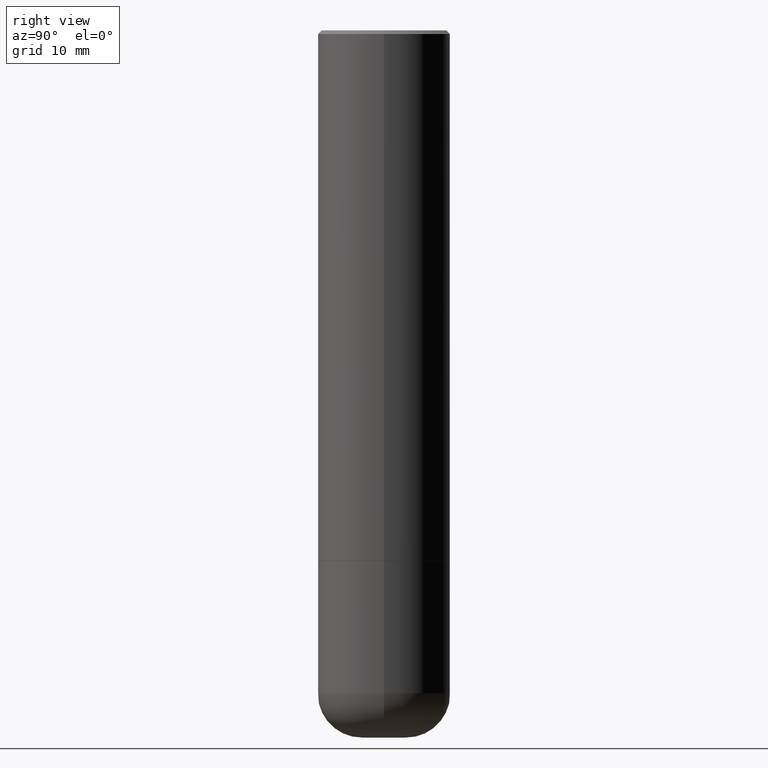
[diagram: clean part render]
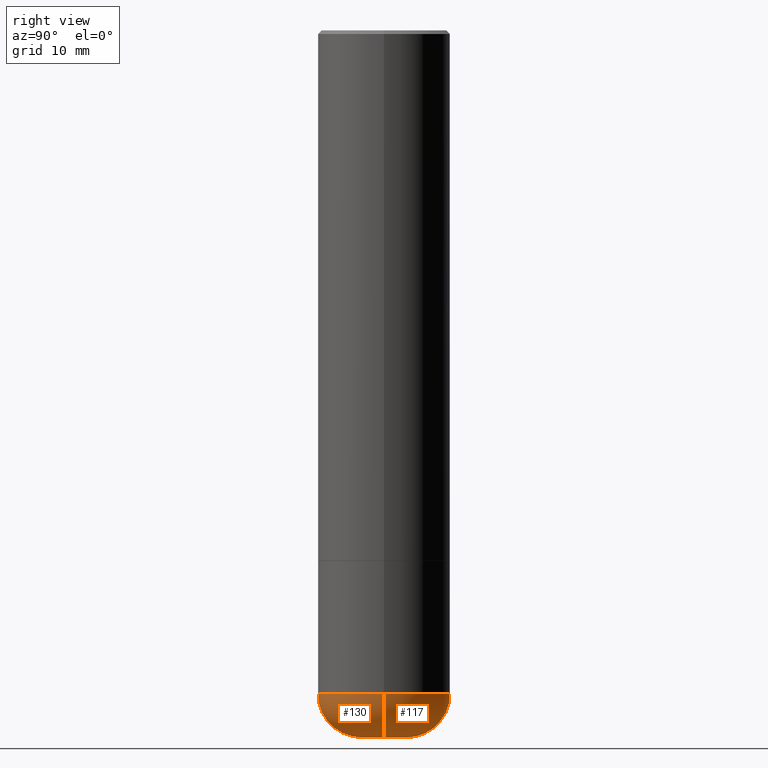
[diagram: same view with one multi-face feature highlighted, each face labeled with its STEP entity id]
A machine part, right view. The highlighted faces form ONE feature: a constant-radius fillet chain: 2 tangent blend faces with common blend radius 6.35 mm. The faces share edges in the B-rep.
Their STEP definitions:
[1] entity #117 (Torus):
#16 = ORIENTED_EDGE ( 'NONE', *, *, #95, .T. ) ;
#60 = VERTEX_POINT ( 'NONE', #324 ) ;
#95 = EDGE_CURVE ( 'NONE', #444, #265, #425, .T. ) ;
#100 = DIRECTION ( 'NONE',  ( 1.000000000000000000, -6.982962677686264344E-15, 0.000000000000000000 ) ) ;
#117 = ADVANCED_FACE ( 'NONE', ( #287 ), #470, .T. ) ;
#120 = VERTEX_POINT ( 'NONE', #131 ) ;
#131 = CARTESIAN_POINT ( 'NONE',  ( 0.3750000000000000555, -1.571169926102186855E-14, -3.750009519233957089 ) ) ;
#133 = CARTESIAN_POINT ( 'NONE',  ( -0.1228183661254081405, -1.176090068723919562E-14, -4.000000000000000000 ) ) ;
#147 = AXIS2_PLACEMENT_3D ( 'NONE', #480, #171, #100 ) ;
#171 = DIRECTION ( 'NONE',  ( -2.445468806185136597E-29, 3.491481338843145583E-15, 1.000000000000000000 ) ) ;
#193 = CIRCLE ( 'NONE', #395, 0.2499999999999998612 ) ;
#202 = ORIENTED_EDGE ( 'NONE', *, *, #355, .F. ) ;
#205 = DIRECTION ( 'NONE',  ( -2.445468806185136597E-29, 3.491481338843145583E-15, 1.000000000000000000 ) ) ;
#206 = AXIS2_PLACEMENT_3D ( 'NONE', #216, #209, #405 ) ;
#209 = DIRECTION ( 'NONE',  ( 7.105427357601001859E-15, 1.000000000000000000, -3.491481338843145583E-15 ) ) ;
#216 = CARTESIAN_POINT ( 'NONE',  ( -0.1250000000000002498, -1.220490983718939015E-14, -3.750009519233957089 ) ) ;
#225 = AXIS2_PLACEMENT_3D ( 'NONE', #333, #205, #448 ) ;
#228 = CARTESIAN_POINT ( 'NONE',  ( 0.1250000000000002498, -1.396595859160030187E-14, -3.750009519233957089 ) ) ;
#244 = DIRECTION ( 'NONE',  ( 1.000000000000000000, -6.982962677686266711E-15, 0.000000000000000000 ) ) ;
#246 = ORIENTED_EDGE ( 'NONE', *, *, #397, .F. ) ;
#259 = CARTESIAN_POINT ( 'NONE',  ( 9.170531302183963183E-29, -1.309308825688951696E-14, -3.750009519233957089 ) ) ;
#264 = DIRECTION ( 'NONE',  ( -2.445468806185136597E-29, 3.491481338843145583E-15, 1.000000000000000000 ) ) ;
#265 = VERTEX_POINT ( 'NONE', #384 ) ;
#268 = ORIENTED_EDGE ( 'NONE', *, *, #479, .T. ) ;
#269 = CIRCLE ( 'NONE', #147, 0.1228183661254081405 ) ;
#287 = FACE_OUTER_BOUND ( 'NONE', #288, .T. ) ;
#288 = EDGE_LOOP ( 'NONE', ( #268, #16, #246, #202 ) ) ;
#289 = DIRECTION ( 'NONE',  ( 1.000000000000000000, -6.982962677686265922E-15, 4.883557194083113462E-29 ) ) ;
#320 = AXIS2_PLACEMENT_3D ( 'NONE', #259, #264, #289 ) ;
#324 = CARTESIAN_POINT ( 'NONE',  ( 0.1228183661254081405, -1.482356142216071483E-14, -4.000000000000000000 ) ) ;
#333 = CARTESIAN_POINT ( 'NONE',  ( 9.170531302183963183E-29, -1.309308825688951696E-14, -3.750009519233957089 ) ) ;
#355 = EDGE_CURVE ( 'NONE', #60, #120, #193, .T. ) ;
#384 = CARTESIAN_POINT ( 'NONE',  ( -0.3750000000000000555, -9.119230877609100958E-15, -3.750009519233957089 ) ) ;
#395 = AXIS2_PLACEMENT_3D ( 'NONE', #228, #427, #244 ) ;
#397 = EDGE_CURVE ( 'NONE', #120, #265, #483, .T. ) ;
#405 = DIRECTION ( 'NONE',  ( -1.000000000000000000, 7.105427357601000281E-15, 0.000000000000000000 ) ) ;
#425 = CIRCLE ( 'NONE', #206, 0.2499999999999998612 ) ;
#427 = DIRECTION ( 'NONE',  ( -6.982962677686266711E-15, -1.000000000000000000, 3.491481338843145583E-15 ) ) ;
#444 = VERTEX_POINT ( 'NONE', #133 ) ;
#448 = DIRECTION ( 'NONE',  ( 1.000000000000000000, -6.982962677686266711E-15, 0.000000000000000000 ) ) ;
#470 = TOROIDAL_SURFACE ( 'NONE', #320, 0.1250000000000002498, 0.2499999999999998890 ) ;
#479 = EDGE_CURVE ( 'NONE', #60, #444, #269, .T. ) ;
#480 = CARTESIAN_POINT ( 'NONE',  ( 9.781875224740546387E-29, -1.396592535537258233E-14, -4.000000000000000000 ) ) ;
#483 = CIRCLE ( 'NONE', #225, 0.3750000000000000555 ) ;
[2] entity #130 (Torus):
#43 = DIRECTION ( 'NONE',  ( 1.000000000000000000, -6.982962677686264344E-15, 0.000000000000000000 ) ) ;
#44 = CIRCLE ( 'NONE', #123, 0.1228183661254081405 ) ;
#46 = EDGE_LOOP ( 'NONE', ( #56, #445, #323, #158 ) ) ;
#53 = DIRECTION ( 'NONE',  ( -2.445468806185136597E-29, 3.491481338843145583E-15, 1.000000000000000000 ) ) ;
#56 = ORIENTED_EDGE ( 'NONE', *, *, #95, .F. ) ;
#59 = DIRECTION ( 'NONE',  ( -2.445468806185136597E-29, 3.491481338843145583E-15, 1.000000000000000000 ) ) ;
#60 = VERTEX_POINT ( 'NONE', #324 ) ;
#64 = DIRECTION ( 'NONE',  ( 1.000000000000000000, -6.982962677686266711E-15, 0.000000000000000000 ) ) ;
#75 = AXIS2_PLACEMENT_3D ( 'NONE', #414, #411, #142 ) ;
#95 = EDGE_CURVE ( 'NONE', #444, #265, #425, .T. ) ;
#101 = CIRCLE ( 'NONE', #379, 0.3750000000000000555 ) ;
#120 = VERTEX_POINT ( 'NONE', #131 ) ;
#123 = AXIS2_PLACEMENT_3D ( 'NONE', #400, #53, #43 ) ;
#130 = ADVANCED_FACE ( 'NONE', ( #375 ), #385, .T. ) ;
#131 = CARTESIAN_POINT ( 'NONE',  ( 0.3750000000000000555, -1.571169926102186855E-14, -3.750009519233957089 ) ) ;
#133 = CARTESIAN_POINT ( 'NONE',  ( -0.1228183661254081405, -1.176090068723919562E-14, -4.000000000000000000 ) ) ;
#142 = DIRECTION ( 'NONE',  ( 1.000000000000000000, -6.982962677686265922E-15, 4.883557194083113462E-29 ) ) ;
#158 = ORIENTED_EDGE ( 'NONE', *, *, #189, .F. ) ;
#189 = EDGE_CURVE ( 'NONE', #265, #120, #101, .T. ) ;
#193 = CIRCLE ( 'NONE', #395, 0.2499999999999998612 ) ;
#206 = AXIS2_PLACEMENT_3D ( 'NONE', #216, #209, #405 ) ;
#209 = DIRECTION ( 'NONE',  ( 7.105427357601001859E-15, 1.000000000000000000, -3.491481338843145583E-15 ) ) ;
#216 = CARTESIAN_POINT ( 'NONE',  ( -0.1250000000000002498, -1.220490983718939015E-14, -3.750009519233957089 ) ) ;
#228 = CARTESIAN_POINT ( 'NONE',  ( 0.1250000000000002498, -1.396595859160030187E-14, -3.750009519233957089 ) ) ;
#244 = DIRECTION ( 'NONE',  ( 1.000000000000000000, -6.982962677686266711E-15, 0.000000000000000000 ) ) ;
#251 = CARTESIAN_POINT ( 'NONE',  ( 9.170531302183963183E-29, -1.309308825688951696E-14, -3.750009519233957089 ) ) ;
#265 = VERTEX_POINT ( 'NONE', #384 ) ;
#323 = ORIENTED_EDGE ( 'NONE', *, *, #355, .T. ) ;
#324 = CARTESIAN_POINT ( 'NONE',  ( 0.1228183661254081405, -1.482356142216071483E-14, -4.000000000000000000 ) ) ;
#355 = EDGE_CURVE ( 'NONE', #60, #120, #193, .T. ) ;
#375 = FACE_OUTER_BOUND ( 'NONE', #46, .T. ) ;
#379 = AXIS2_PLACEMENT_3D ( 'NONE', #251, #59, #64 ) ;
#384 = CARTESIAN_POINT ( 'NONE',  ( -0.3750000000000000555, -9.119230877609100958E-15, -3.750009519233957089 ) ) ;
#385 = TOROIDAL_SURFACE ( 'NONE', #75, 0.1250000000000002498, 0.2499999999999998890 ) ;
#395 = AXIS2_PLACEMENT_3D ( 'NONE', #228, #427, #244 ) ;
#400 = CARTESIAN_POINT ( 'NONE',  ( 9.781875224740546387E-29, -1.396592535537258233E-14, -4.000000000000000000 ) ) ;
#405 = DIRECTION ( 'NONE',  ( -1.000000000000000000, 7.105427357601000281E-15, 0.000000000000000000 ) ) ;
#411 = DIRECTION ( 'NONE',  ( -2.445468806185136597E-29, 3.491481338843145583E-15, 1.000000000000000000 ) ) ;
#414 = CARTESIAN_POINT ( 'NONE',  ( 9.170531302183963183E-29, -1.309308825688951696E-14, -3.750009519233957089 ) ) ;
#419 = EDGE_CURVE ( 'NONE', #444, #60, #44, .T. ) ;
#425 = CIRCLE ( 'NONE', #206, 0.2499999999999998612 ) ;
#427 = DIRECTION ( 'NONE',  ( -6.982962677686266711E-15, -1.000000000000000000, 3.491481338843145583E-15 ) ) ;
#444 = VERTEX_POINT ( 'NONE', #133 ) ;
#445 = ORIENTED_EDGE ( 'NONE', *, *, #419, .T. ) ;